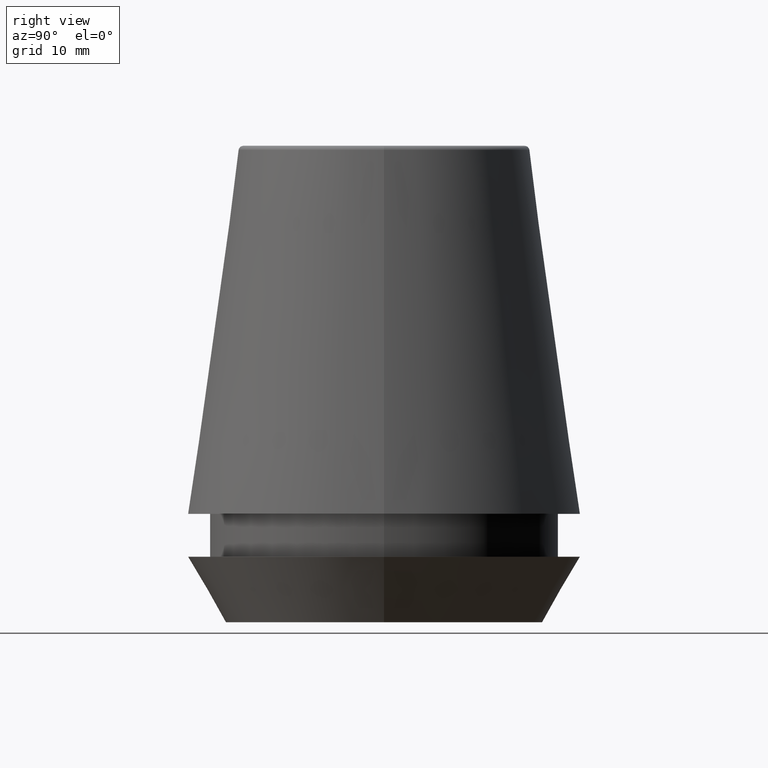
[diagram: clean part render]
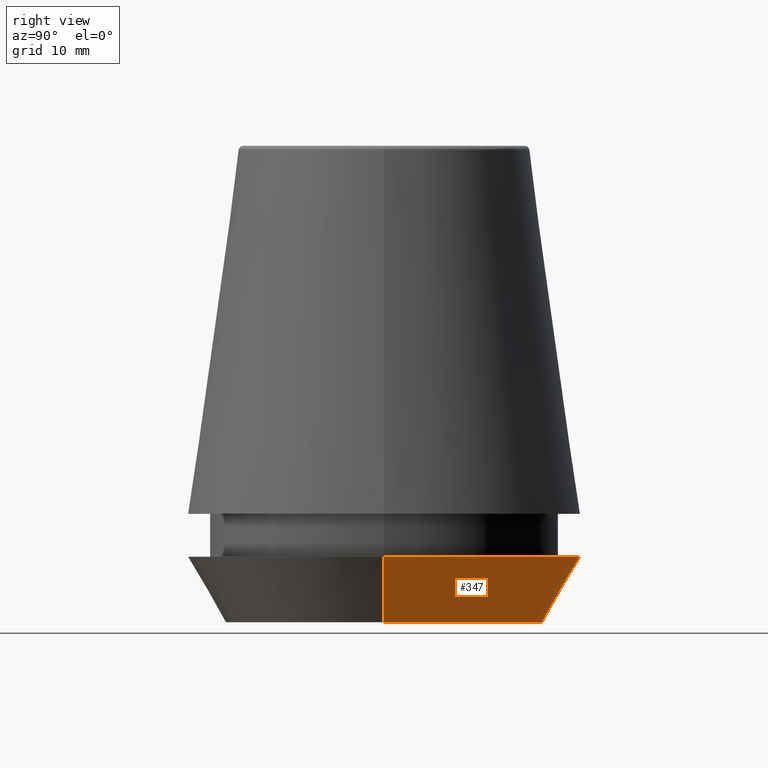
[diagram: same view with one face highlighted and labeled with its STEP entity id]
A machine part, right view. The second image highlights one B-rep face of the part: STEP entity #347.
In plain terms, the highlighted conical surface has half-angle 30 deg.
Its self-contained STEP definition (entity closure, byte-faithful):
#2 = VERTEX_POINT ( 'NONE', #189 ) ;
#12 = CARTESIAN_POINT ( 'NONE',  ( 13.32457351945710200, 0.0000000000000000000, 0.0000000000000000000 ) ) ;
#33 = DIRECTION ( 'NONE',  ( 1.000000000000000000, 0.0000000000000000000, 0.0000000000000000000 ) ) ;
#46 = EDGE_CURVE ( 'NONE', #2, #106, #253, .T. ) ;
#47 = EDGE_LOOP ( 'NONE', ( #72, #372, #143, #78 ) ) ;
#56 = DIRECTION ( 'NONE',  ( -0.0000000000000000000, -0.0000000000000000000, 1.000000000000000000 ) ) ;
#72 = ORIENTED_EDGE ( 'NONE', *, *, #133, .T. ) ;
#78 = ORIENTED_EDGE ( 'NONE', *, *, #363, .F. ) ;
#90 = DIRECTION ( 'NONE',  ( 0.4999999999999947300, 0.0000000000000000000, 0.8660254037844418200 ) ) ;
#92 = CARTESIAN_POINT ( 'NONE',  ( 13.32457351945710200, 0.0000000000000000000, 0.0000000000000000000 ) ) ;
#95 = LINE ( 'NONE', #144, #378 ) ;
#106 = VERTEX_POINT ( 'NONE', #385 ) ;
#116 = DIRECTION ( 'NONE',  ( -0.4999999999999947300, 6.123233995736700700E-017, 0.8660254037844418200 ) ) ;
#133 = EDGE_CURVE ( 'NONE', #379, #303, #214, .T. ) ;
#143 = ORIENTED_EDGE ( 'NONE', *, *, #46, .F. ) ;
#144 = CARTESIAN_POINT ( 'NONE',  ( -13.32457351945710200, 1.631789631060672300E-015, 0.0000000000000000000 ) ) ;
#164 = AXIS2_PLACEMENT_3D ( 'NONE', #267, #166, #302 ) ;
#166 = DIRECTION ( 'NONE',  ( -0.0000000000000000000, -0.0000000000000000000, 1.000000000000000000 ) ) ;
#177 = EDGE_CURVE ( 'NONE', #303, #106, #95, .T. ) ;
#184 = AXIS2_PLACEMENT_3D ( 'NONE', #354, #218, #224 ) ;
#185 = VECTOR ( 'NONE', #90, 999.9999999999998900 ) ;
#189 = CARTESIAN_POINT ( 'NONE',  ( 16.50000000000000000, 0.0000000000000000000, 5.500000000000005300 ) ) ;
#214 = CIRCLE ( 'NONE', #164, 13.32457351945710200 ) ;
#218 = DIRECTION ( 'NONE',  ( -0.0000000000000000000, -0.0000000000000000000, 1.000000000000000000 ) ) ;
#224 = DIRECTION ( 'NONE',  ( 1.000000000000000000, 0.0000000000000000000, 0.0000000000000000000 ) ) ;
#253 = CIRCLE ( 'NONE', #184, 16.50000000000000000 ) ;
#259 = CARTESIAN_POINT ( 'NONE',  ( -13.32457351945710200, 1.826228424826902600E-015, 0.0000000000000000000 ) ) ;
#267 = CARTESIAN_POINT ( 'NONE',  ( 0.0000000000000000000, 0.0000000000000000000, 0.0000000000000000000 ) ) ;
#302 = DIRECTION ( 'NONE',  ( 1.000000000000000000, 0.0000000000000000000, 0.0000000000000000000 ) ) ;
#303 = VERTEX_POINT ( 'NONE', #259 ) ;
#311 = CONICAL_SURFACE ( 'NONE', #340, 13.32457351945710200, 0.5235987755982927100 ) ;
#340 = AXIS2_PLACEMENT_3D ( 'NONE', #373, #56, #33 ) ;
#347 = ADVANCED_FACE ( 'NONE', ( #375 ), #311, .T. ) ;
#354 = CARTESIAN_POINT ( 'NONE',  ( 0.0000000000000000000, 0.0000000000000000000, 5.500000000000005300 ) ) ;
#363 = EDGE_CURVE ( 'NONE', #379, #2, #380, .T. ) ;
#372 = ORIENTED_EDGE ( 'NONE', *, *, #177, .T. ) ;
#373 = CARTESIAN_POINT ( 'NONE',  ( 0.0000000000000000000, 0.0000000000000000000, 0.0000000000000000000 ) ) ;
#375 = FACE_OUTER_BOUND ( 'NONE', #47, .T. ) ;
#378 = VECTOR ( 'NONE', #116, 999.9999999999998900 ) ;
#379 = VERTEX_POINT ( 'NONE', #92 ) ;
#380 = LINE ( 'NONE', #12, #185 ) ;
#385 = CARTESIAN_POINT ( 'NONE',  ( -16.50000000000000000, 2.020667218593133100E-015, 5.500000000000005300 ) ) ;